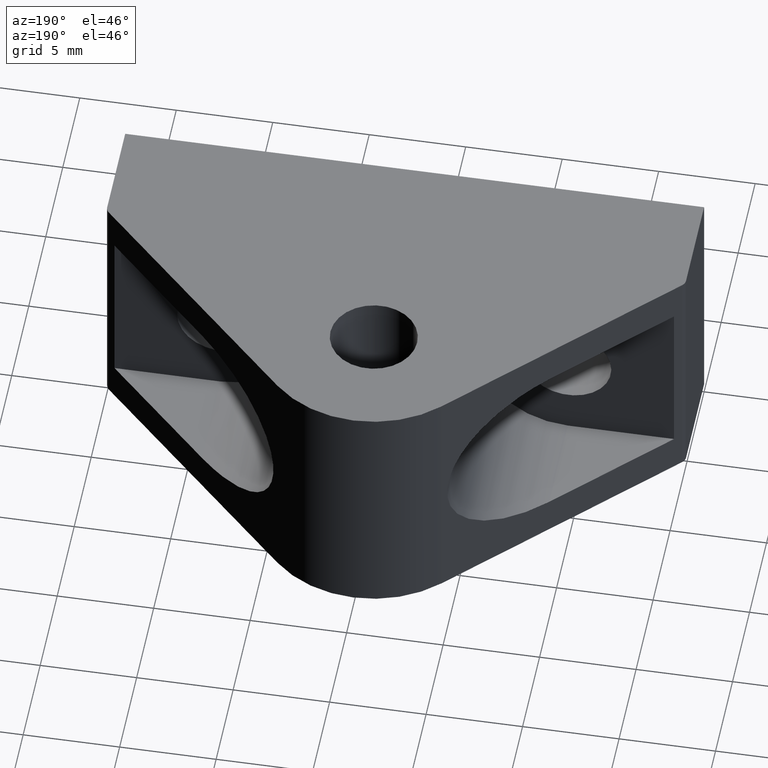
[diagram: clean part render]
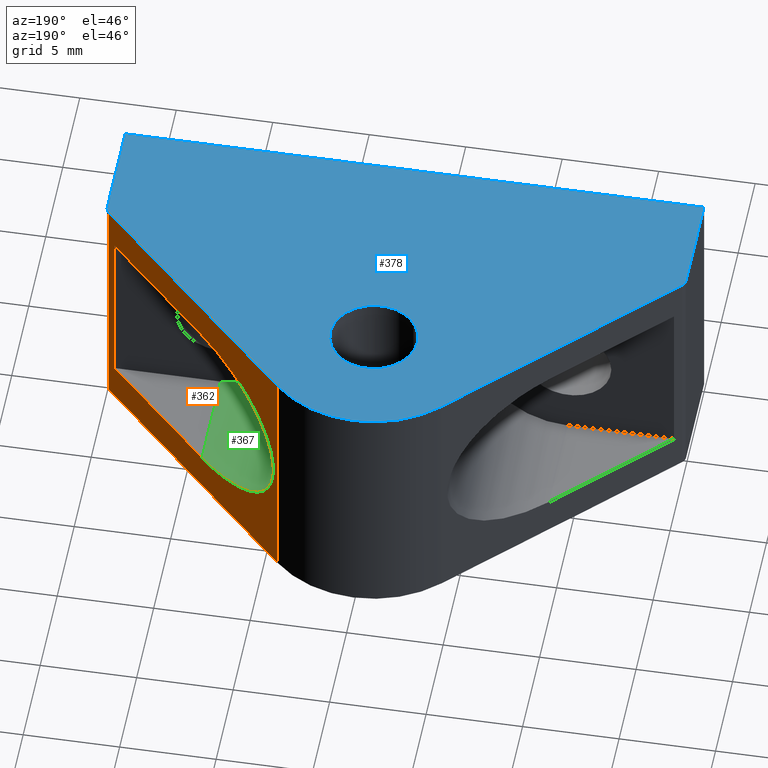
[diagram: same view with three faces highlighted in distinct colors, each labeled with its STEP entity id]
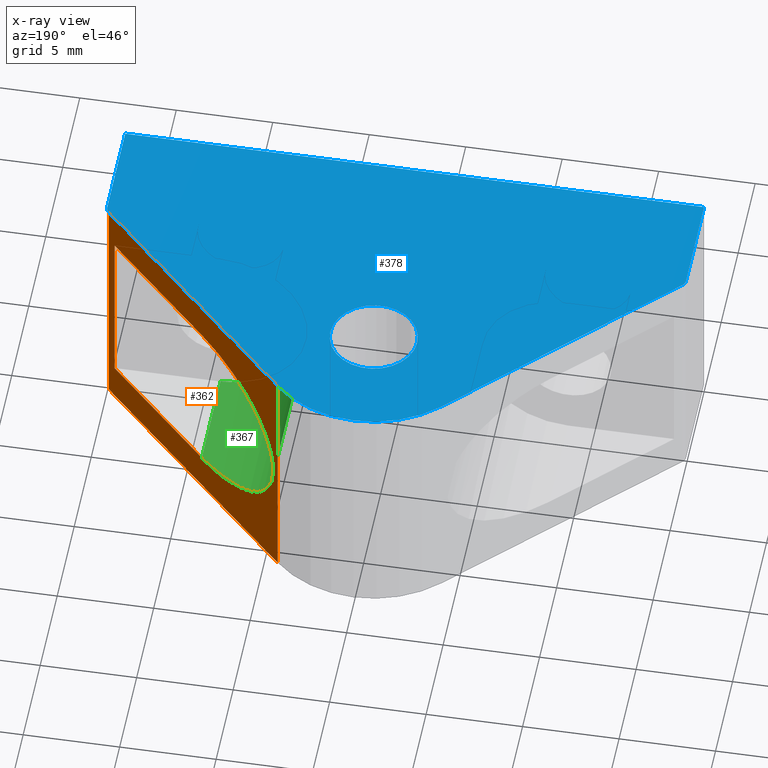
[diagram: x-ray of the same camera — body ghosted, the three highlighted faces saturated]
A machine part, auxiliary view with three faces highlighted in distinct colors.
The next image is the same camera in x-ray (body ghosted, the three faces saturated) — at least one of them is partly hidden behind the body in this view.
Their STEP definitions:

[orange] entity #362 — the highlighted planar face has unit normal (0.7071, 0.7071, 0).
#37=FACE_BOUND('',#76,.T.);
#48=ELLIPSE('',#386,6.36396103067893,4.5);
#54=FACE_OUTER_BOUND('',#75,.T.);
#75=EDGE_LOOP('',(#261,#262,#263,#264));
#76=EDGE_LOOP('',(#265,#266,#267,#268));
#109=LINE('',#544,#141);
#112=LINE('',#551,#144);
#115=LINE('',#558,#147);
#116=LINE('',#560,#148);
#117=LINE('',#562,#149);
#118=LINE('',#563,#150);
#119=LINE('',#564,#151);
#141=VECTOR('',#432,7.77817459305202);
#144=VECTOR('',#437,7.77817459305202);
#147=VECTOR('',#442,13.);
#148=VECTOR('',#443,15.0060966544099);
#149=VECTOR('',#444,13.);
#150=VECTOR('',#445,15.0060966544099);
#151=VECTOR('',#446,9.);
#173=VERTEX_POINT('',#542);
#174=VERTEX_POINT('',#543);
#176=VERTEX_POINT('',#549);
#177=VERTEX_POINT('',#550);
#179=VERTEX_POINT('',#556);
#180=VERTEX_POINT('',#557);
#181=VERTEX_POINT('',#559);
#182=VERTEX_POINT('',#561);
#207=EDGE_CURVE('',#173,#174,#109,.T.);
#210=EDGE_CURVE('',#176,#177,#112,.T.);
#213=EDGE_CURVE('',#179,#180,#115,.T.);
#214=EDGE_CURVE('',#179,#181,#116,.T.);
#215=EDGE_CURVE('',#182,#181,#117,.T.);
#216=EDGE_CURVE('',#180,#182,#118,.T.);
#217=EDGE_CURVE('',#177,#173,#119,.T.);
#218=EDGE_CURVE('',#174,#176,#48,.T.);
#261=ORIENTED_EDGE('',*,*,#213,.F.);
#262=ORIENTED_EDGE('',*,*,#214,.T.);
#263=ORIENTED_EDGE('',*,*,#215,.F.);
#264=ORIENTED_EDGE('',*,*,#216,.F.);
#265=ORIENTED_EDGE('',*,*,#210,.T.);
#266=ORIENTED_EDGE('',*,*,#217,.T.);
#267=ORIENTED_EDGE('',*,*,#207,.T.);
#268=ORIENTED_EDGE('',*,*,#218,.T.);
#349=PLANE('',#385);
#362=ADVANCED_FACE('',(#54,#37),#349,.T.);
#385=AXIS2_PLACEMENT_3D('',#555,#440,#441);
#386=AXIS2_PLACEMENT_3D('',#565,#447,#448);
#432=DIRECTION('',(-0.707106781186548,0.707106781186547,0.));
#437=DIRECTION('',(0.707106781186548,-0.707106781186547,0.));
#440=DIRECTION('center_axis',(0.707106781186547,0.707106781186548,0.));
#441=DIRECTION('ref_axis',(-0.707106781186548,0.707106781186547,0.));
#442=DIRECTION('',(0.,0.,1.));
#443=DIRECTION('',(-0.707106781186548,0.707106781186547,0.));
#444=DIRECTION('',(0.,0.,-1.));
#445=DIRECTION('',(-0.707106781186548,0.707106781186547,0.));
#446=DIRECTION('',(0.,0.,1.));
#447=DIRECTION('center_axis',(-0.707106781186547,-0.707106781186548,0.));
#448=DIRECTION('ref_axis',(0.707106781186548,-0.707106781186547,0.));
#542=CARTESIAN_POINT('',(29.5,6.,11.));
#543=CARTESIAN_POINT('',(24.,11.5,11.));
#544=CARTESIAN_POINT('',(27.,8.5,11.));
#549=CARTESIAN_POINT('',(24.,11.5,2.));
#550=CARTESIAN_POINT('',(29.5,6.,2.));
#551=CARTESIAN_POINT('',(28.375,7.125,2.));
#555=CARTESIAN_POINT('Origin',(30.,5.5,0.));
#556=CARTESIAN_POINT('',(29.8535533905933,5.64644660940672,0.));
#557=CARTESIAN_POINT('',(29.8535533905933,5.64644660940672,13.));
#558=CARTESIAN_POINT('',(29.8535533905933,5.64644660940672,0.));
#559=CARTESIAN_POINT('',(19.2426406871193,16.2573593128807,0.));
#560=CARTESIAN_POINT('',(30.,5.5,0.));
#561=CARTESIAN_POINT('',(19.2426406871193,16.2573593128807,13.));
#562=CARTESIAN_POINT('',(19.2426406871193,16.2573593128807,0.));
#563=CARTESIAN_POINT('',(30.,5.5,13.));
#564=CARTESIAN_POINT('',(29.5,6.,5.5));
#565=CARTESIAN_POINT('Origin',(24.,11.5,6.5));

[blue] entity #378 — the highlighted planar face has unit normal (0, 0, 1).
#30=CIRCLE('',#402,2.25);
#31=CIRCLE('',#404,0.5);
#35=CIRCLE('',#411,0.5);
#36=CIRCLE('',#413,6.);
#47=FACE_BOUND('',#102,.T.);
#70=FACE_OUTER_BOUND('',#101,.T.);
#101=EDGE_LOOP('',(#336,#337,#338,#339,#340,#341,#342,#343));
#102=EDGE_LOOP('',(#344));
#118=LINE('',#563,#150);
#125=LINE('',#603,#157);
#131=LINE('',#622,#163);
#133=LINE('',#626,#165);
#134=LINE('',#628,#166);
#150=VECTOR('',#445,15.0060966544099);
#157=VECTOR('',#494,5.29289321881346);
#163=VECTOR('',#516,15.0060966544099);
#165=VECTOR('',#520,30.);
#166=VECTOR('',#523,5.29289321881345);
#180=VERTEX_POINT('',#557);
#182=VERTEX_POINT('',#561);
#188=VERTEX_POINT('',#587);
#189=VERTEX_POINT('',#590);
#190=VERTEX_POINT('',#591);
#194=VERTEX_POINT('',#601);
#198=VERTEX_POINT('',#614);
#199=VERTEX_POINT('',#618);
#200=VERTEX_POINT('',#624);
#216=EDGE_CURVE('',#180,#182,#118,.T.);
#228=EDGE_CURVE('',#188,#188,#30,.T.);
#229=EDGE_CURVE('',#189,#190,#31,.T.);
#235=EDGE_CURVE('',#189,#194,#125,.T.);
#241=EDGE_CURVE('',#180,#198,#35,.T.);
#243=EDGE_CURVE('',#199,#182,#36,.T.);
#245=EDGE_CURVE('',#199,#190,#131,.T.);
#247=EDGE_CURVE('',#194,#200,#133,.T.);
#248=EDGE_CURVE('',#200,#198,#134,.T.);
#336=ORIENTED_EDGE('',*,*,#229,.F.);
#337=ORIENTED_EDGE('',*,*,#235,.T.);
#338=ORIENTED_EDGE('',*,*,#247,.T.);
#339=ORIENTED_EDGE('',*,*,#248,.T.);
#340=ORIENTED_EDGE('',*,*,#241,.F.);
#341=ORIENTED_EDGE('',*,*,#216,.T.);
#342=ORIENTED_EDGE('',*,*,#243,.F.);
#343=ORIENTED_EDGE('',*,*,#245,.T.);
#344=ORIENTED_EDGE('',*,*,#228,.T.);
#357=PLANE('',#417);
#378=ADVANCED_FACE('',(#70,#47),#357,.T.);
#402=AXIS2_PLACEMENT_3D('',#588,#480,#481);
#404=AXIS2_PLACEMENT_3D('',#592,#484,#485);
#411=AXIS2_PLACEMENT_3D('',#615,#506,#507);
#413=AXIS2_PLACEMENT_3D('',#619,#511,#512);
#417=AXIS2_PLACEMENT_3D('',#629,#524,#525);
#445=DIRECTION('',(-0.707106781186548,0.707106781186547,0.));
#480=DIRECTION('center_axis',(0.,0.,-1.));
#481=DIRECTION('ref_axis',(1.,0.,0.));
#484=DIRECTION('center_axis',(0.,0.,-1.));
#485=DIRECTION('ref_axis',(-0.923879532511288,0.382683432365088,0.));
#494=DIRECTION('',(4.03717463500057E-16,-1.,0.));
#506=DIRECTION('center_axis',(0.,0.,-1.));
#507=DIRECTION('ref_axis',(0.923879532511287,0.38268343236509,0.));
#511=DIRECTION('center_axis',(0.,0.,-1.));
#512=DIRECTION('ref_axis',(0.,1.,0.));
#516=DIRECTION('',(-0.707106781186547,-0.707106781186548,0.));
#520=DIRECTION('',(1.,0.,0.));
#523=DIRECTION('',(8.07434927000114E-16,1.,0.));
#524=DIRECTION('center_axis',(0.,0.,1.));
#525=DIRECTION('ref_axis',(1.,0.,0.));
#557=CARTESIAN_POINT('',(29.8535533905933,5.64644660940672,13.));
#561=CARTESIAN_POINT('',(19.2426406871193,16.2573593128807,13.));
#563=CARTESIAN_POINT('',(30.,5.5,13.));
#587=CARTESIAN_POINT('',(17.25,12.,13.));
#588=CARTESIAN_POINT('Origin',(15.,12.,13.));
#590=CARTESIAN_POINT('',(-2.13683342487602E-15,5.29289321881346,13.));
#591=CARTESIAN_POINT('',(0.146446609406727,5.64644660940673,13.));
#592=CARTESIAN_POINT('Origin',(0.499999999999998,5.29289321881346,13.));
#601=CARTESIAN_POINT('',(0.,0.,13.));
#603=CARTESIAN_POINT('',(-2.22044604925031E-15,5.5,13.));
#614=CARTESIAN_POINT('',(30.,5.29289321881345,13.));
#615=CARTESIAN_POINT('Origin',(29.5,5.29289321881345,13.));
#618=CARTESIAN_POINT('',(10.7573593128807,16.2573593128807,13.));
#619=CARTESIAN_POINT('Origin',(15.,12.0147186257614,13.));
#622=CARTESIAN_POINT('',(15.,20.5,13.));
#624=CARTESIAN_POINT('',(30.,0.,13.));
#626=CARTESIAN_POINT('',(0.,0.,13.));
#628=CARTESIAN_POINT('',(30.,0.,13.));
#629=CARTESIAN_POINT('Origin',(20.6917021823758,8.05330085889911,13.));

[green] entity #367 — the highlighted cylindrical surface (partial cylindrical patch) has radius 4.5 mm, axis along (0, -1, 0).
#17=CYLINDRICAL_SURFACE('',#397,4.5);
#26=CIRCLE('',#395,4.5);
#48=ELLIPSE('',#386,6.36396103067893,4.5);
#59=FACE_OUTER_BOUND('',#84,.T.);
#84=EDGE_LOOP('',(#285,#286,#287,#288));
#111=LINE('',#547,#143);
#113=LINE('',#553,#145);
#143=VECTOR('',#434,5.5);
#145=VECTOR('',#438,5.5);
#174=VERTEX_POINT('',#543);
#175=VERTEX_POINT('',#545);
#176=VERTEX_POINT('',#549);
#178=VERTEX_POINT('',#552);
#209=EDGE_CURVE('',#175,#174,#111,.T.);
#211=EDGE_CURVE('',#178,#176,#113,.T.);
#218=EDGE_CURVE('',#174,#176,#48,.T.);
#224=EDGE_CURVE('',#175,#178,#26,.T.);
#285=ORIENTED_EDGE('',*,*,#211,.T.);
#286=ORIENTED_EDGE('',*,*,#218,.F.);
#287=ORIENTED_EDGE('',*,*,#209,.F.);
#288=ORIENTED_EDGE('',*,*,#224,.T.);
#367=ADVANCED_FACE('',(#59),#17,.F.);
#386=AXIS2_PLACEMENT_3D('',#565,#447,#448);
#395=AXIS2_PLACEMENT_3D('',#577,#466,#467);
#397=AXIS2_PLACEMENT_3D('',#580,#470,#471);
#434=DIRECTION('',(0.,1.,0.));
#438=DIRECTION('',(0.,1.,0.));
#447=DIRECTION('center_axis',(-0.707106781186547,-0.707106781186548,0.));
#448=DIRECTION('ref_axis',(0.707106781186548,-0.707106781186547,0.));
#466=DIRECTION('center_axis',(0.,-1.,0.));
#467=DIRECTION('ref_axis',(1.,0.,0.));
#470=DIRECTION('center_axis',(0.,-1.,0.));
#471=DIRECTION('ref_axis',(1.,0.,0.));
#543=CARTESIAN_POINT('',(24.,11.5,11.));
#545=CARTESIAN_POINT('',(24.,6.,11.));
#547=CARTESIAN_POINT('',(24.,11.,11.));
#549=CARTESIAN_POINT('',(24.,11.5,2.));
#552=CARTESIAN_POINT('',(24.,6.,2.));
#553=CARTESIAN_POINT('',(24.,11.,2.));
#565=CARTESIAN_POINT('Origin',(24.,11.5,6.5));
#577=CARTESIAN_POINT('Origin',(24.,6.,6.5));
#580=CARTESIAN_POINT('Origin',(24.,11.,6.5));